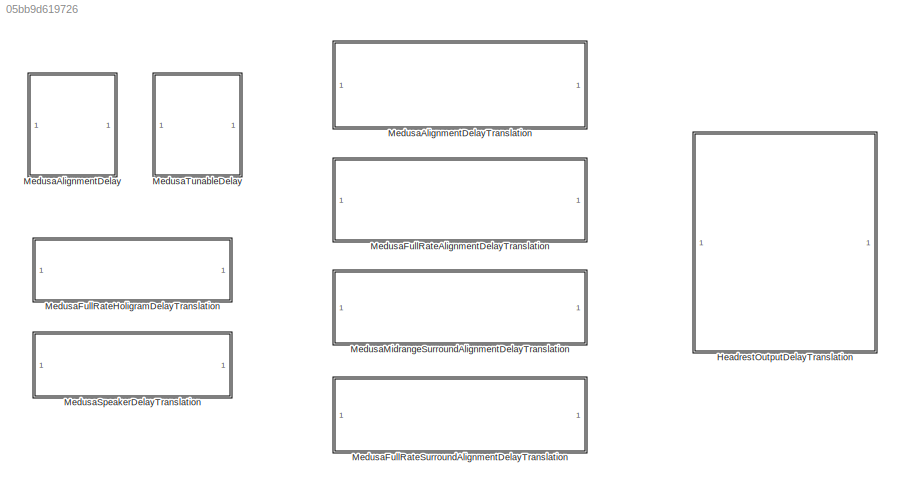
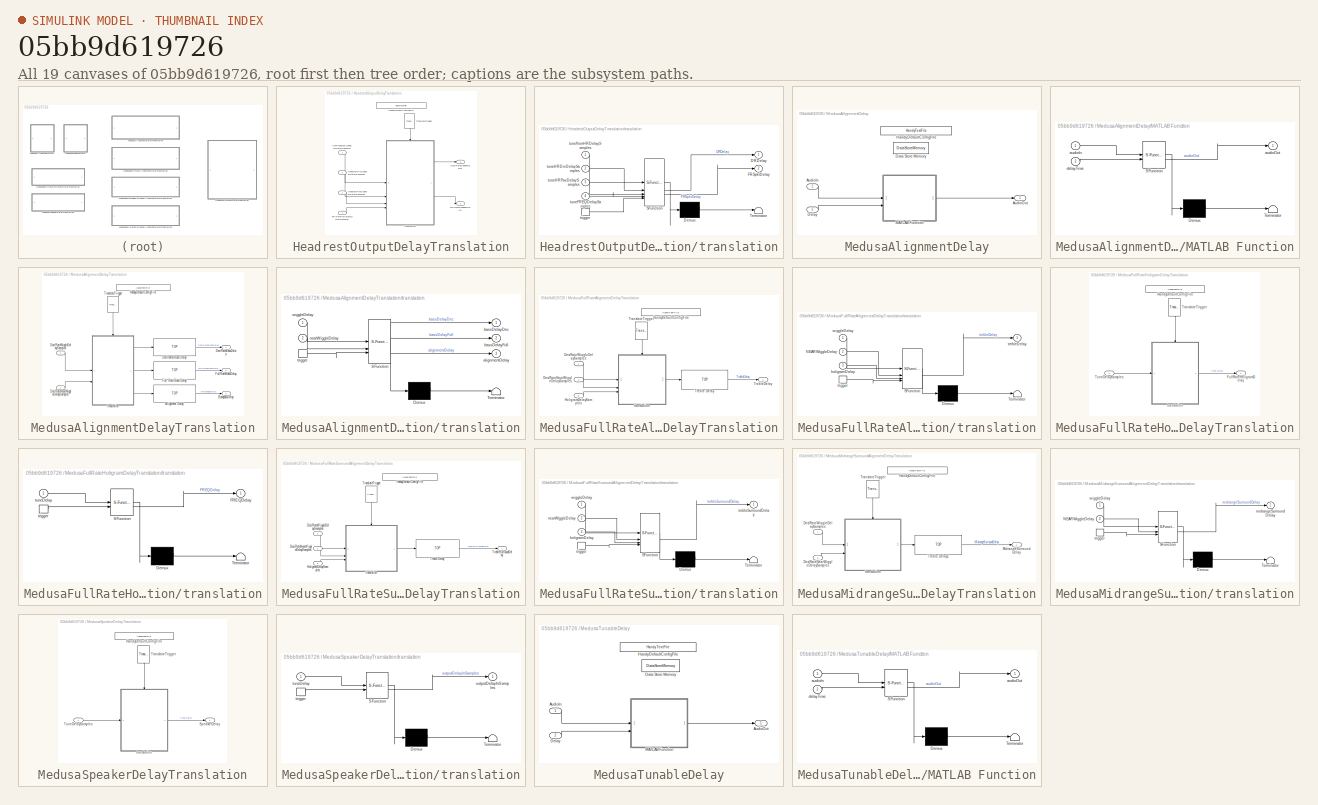
[diagram: thumbnail index - all 19 canvases of the model, root first then tree order]
MODEL slx_05bb9d619726
KIND library
CONFIG AbsTol = auto
CONFIG EnableMultiTasking = off
CONFIG FixedStep = auto
CONFIG MaxStep = auto
CONFIG MinStep = auto
CONFIG RelTol = 1e-3
CONFIG SampleTimeConstraint = Unconstrained
CONFIG SolverName = VariableStepAuto
CONFIG StartTime = 0.0
CONFIG StopTime = 10.0
BLOCK [SubSystem] HeadrestOutputDelayTranslation
BLOCK [Outport] HeadrestOutputDelayTranslation/DeciRateSpeakerDelay
BLOCK [Inport] HeadrestOutputDelayTranslation/FullRateHoligramDelaySamples
  Port = 4
BLOCK [Outport] HeadrestOutputDelayTranslation/FullRateSpeakerDelay
  Port = 2
BLOCK [Reference] HeadrestOutputDelayTranslation/HandyDefaultConfigFile  REF=HandyTextFile/HandyTextFile
  SourceBlock = HandyTextFile/HandyTextFile
  SourceProductName = Bose Talaria
  SourceType = Talaria Handy Text File
BLOCK [Inport] HeadrestOutputDelayTranslation/HeadrestDrvSpeakerDelaySamples
  Port = 2
BLOCK [Inport] HeadrestOutputDelayTranslation/HeadrestPaxSpeakerDelaySamples
  Port = 3
BLOCK [Inport] HeadrestOutputDelayTranslation/NonHeadrestSpeakerDelaySamples
BLOCK [Reference] HeadrestOutputDelayTranslation/TranslateTrigger  REF=TuneVar/TranslateTrigger
  NameLocation = left
  SourceBlock = TuneVar/TranslateTrigger
  SourceProductName = Bose Talaria
  SourceType = Talaria Translate Trigger
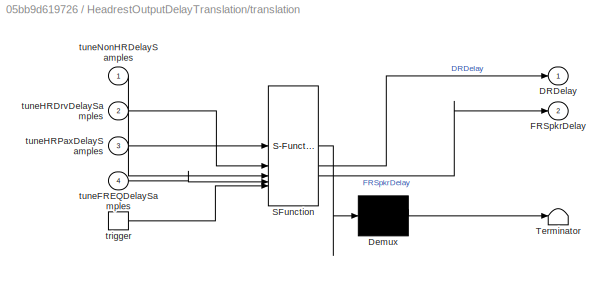
BLOCK [SubSystem] HeadrestOutputDelayTranslation/translation
  ErrorFcn = Stateflow.Translate.translate
  PermitHierarchicalResolution = ExplicitOnly
  SFBlockType = MATLAB Function
  TreatAsAtomicUnit = on
BLOCK [Demux] HeadrestOutputDelayTranslation/translation/ Demux 
  Outputs = 1
BLOCK [S-Function] HeadrestOutputDelayTranslation/translation/ SFunction 
  EnableBusSupport = off
  FunctionName = sf_sfun
  Parameters = DecimationFactor,maxFullRateHoligramDelay,maxFullRateSpeakerDelay,numHeadrestComps
  PortCounts = [5 3]
  SFcnIsStateOwnerBlock = off
  SFunctionDeploymentMode = off
  Tag = Stateflow S-Function 42
BLOCK [Terminator] HeadrestOutputDelayTranslation/translation/ Terminator 
BLOCK [Outport] HeadrestOutputDelayTranslation/translation/DRDelay
BLOCK [Outport] HeadrestOutputDelayTranslation/translation/FRSpkrDelay
  Port = 2
BLOCK [TriggerPort] HeadrestOutputDelayTranslation/translation/trigger
  ShowOutputPort = on
  StatesWhenEnabling = held
  TriggerType = function-call
  VariantControl = Variant
BLOCK [Inport] HeadrestOutputDelayTranslation/translation/tuneFREQDelaySamples
  Port = 4
BLOCK [Inport] HeadrestOutputDelayTranslation/translation/tuneHRDrvDelaySamples
  Port = 2
BLOCK [Inport] HeadrestOutputDelayTranslation/translation/tuneHRPaxDelaySamples
  Port = 3
BLOCK [Inport] HeadrestOutputDelayTranslation/translation/tuneNonHRDelaySamples
BLOCK [SubSystem] MedusaAlignmentDelay
BLOCK [Inport] MedusaAlignmentDelay/AudioIn
BLOCK [Outport] MedusaAlignmentDelay/AudioOut
  VectorParamsAs1DForOutWhenUnconnected = off
BLOCK [DataStoreMemory] MedusaAlignmentDelay/Data Store Memory
  DataStoreName = delayBuffer
  EmbeddedSignalClassName = Bose.Signal
  InitialValue = Config.DelayBufferInitValue
  OutDataTypeStr = single
  ReadBeforeWriteMsg = warning
  ShowAdditionalParam = off
  SignalType = real
  WriteAfterReadMsg = warning
  WriteAfterWriteMsg = warning
BLOCK [Inport] MedusaAlignmentDelay/Delay
  Port = 2
BLOCK [Reference] MedusaAlignmentDelay/HandyDefaultConfigFile  REF=HandyTextFile/HandyTextFile
  SourceBlock = HandyTextFile/HandyTextFile
  SourceProductName = Bose Talaria
  SourceType = Talaria Handy Text File
BLOCK [SubSystem] MedusaAlignmentDelay/MATLAB Function
  ErrorFcn = Stateflow.Translate.translate
  PermitHierarchicalResolution = ExplicitOnly
  SFBlockType = MATLAB Function
  TreatAsAtomicUnit = on
BLOCK [Demux] MedusaAlignmentDelay/MATLAB Function/ Demux 
  Outputs = 1
BLOCK [S-Function] MedusaAlignmentDelay/MATLAB Function/ SFunction 
  EnableBusSupport = off
  FunctionName = sf_sfun
  Parameters = maxDelay
  PortCounts = [2 2]
  SFcnIsStateOwnerBlock = off
  SFunctionDeploymentMode = off
  Tag = Stateflow S-Function 3
BLOCK [Terminator] MedusaAlignmentDelay/MATLAB Function/ Terminator 
BLOCK [Inport] MedusaAlignmentDelay/MATLAB Function/audioIn
BLOCK [Outport] MedusaAlignmentDelay/MATLAB Function/audioOut
  VectorParamsAs1DForOutWhenUnconnected = off
BLOCK [Inport] MedusaAlignmentDelay/MATLAB Function/delayTime
  Port = 2
BLOCK [SubSystem] MedusaAlignmentDelayTranslation
BLOCK [Reference] MedusaAlignmentDelayTranslation/Alignment Delay  REF=TOP/TOP
  SourceBlock = TOP/TOP
  SourceProductName = Bose Talaria
  SourceType = Talaria Target Overlay Parameter
BLOCK [Outport] MedusaAlignmentDelayTranslation/BandpassDelay
  Port = 3
  VectorParamsAs1DForOutWhenUnconnected = off
BLOCK [Outport] MedusaAlignmentDelayTranslation/DeciRateBassDelay
  VectorParamsAs1DForOutWhenUnconnected = off
BLOCK [Inport] MedusaAlignmentDelayTranslation/DeciRateNearWiggleDelaySamples
  Port = 2
BLOCK [Inport] MedusaAlignmentDelayTranslation/DeciRateWiggleDelaySamples
BLOCK [Reference] MedusaAlignmentDelayTranslation/Decimated Bass Delay  REF=TOP/TOP
  SourceBlock = TOP/TOP
  SourceProductName = Bose Talaria
  SourceType = Talaria Target Overlay Parameter
BLOCK [Reference] MedusaAlignmentDelayTranslation/Full Rate Bass Delay  REF=TOP/TOP
  SourceBlock = TOP/TOP
  SourceProductName = Bose Talaria
  SourceType = Talaria Target Overlay Parameter
BLOCK [Outport] MedusaAlignmentDelayTranslation/FullRateBassDelay
  Port = 2
  VectorParamsAs1DForOutWhenUnconnected = off
BLOCK [Reference] MedusaAlignmentDelayTranslation/HandyDefaultConfigFile  REF=HandyTextFile/HandyTextFile
  SourceBlock = HandyTextFile/HandyTextFile
  SourceProductName = Bose Talaria
  SourceType = Talaria Handy Text File
BLOCK [Reference] MedusaAlignmentDelayTranslation/TranslateTrigger  REF=TuneVar/TranslateTrigger
  NameLocation = left
  SourceBlock = TuneVar/TranslateTrigger
  SourceProductName = Bose Talaria
  SourceType = Talaria Translate Trigger
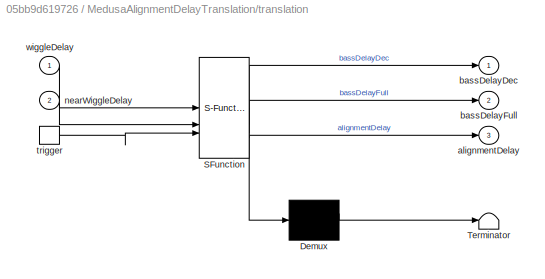
BLOCK [SubSystem] MedusaAlignmentDelayTranslation/translation
  ErrorFcn = Stateflow.Translate.translate
  PermitHierarchicalResolution = ExplicitOnly
  SFBlockType = MATLAB Function
  TreatAsAtomicUnit = on
BLOCK [Demux] MedusaAlignmentDelayTranslation/translation/ Demux 
  Outputs = 1
BLOCK [S-Function] MedusaAlignmentDelayTranslation/translation/ SFunction 
  EnableBusSupport = off
  FunctionName = sf_sfun
  Parameters = DEC,FDPDelay,bandSplitDelay,maxAlignmentDelay,maxBassDelayDec,maxBassDelayFull,maxNearWiggleDelayDec,maxWiggleDelayDec
  PortCounts = [3 4]
  SFcnIsStateOwnerBlock = off
  SFunctionDeploymentMode = off
  Tag = Stateflow S-Function 8
BLOCK [Terminator] MedusaAlignmentDelayTranslation/translation/ Terminator 
BLOCK [Outport] MedusaAlignmentDelayTranslation/translation/alignmentDelay
  Port = 3
  VectorParamsAs1DForOutWhenUnconnected = off
BLOCK [Outport] MedusaAlignmentDelayTranslation/translation/bassDelayDec
  VectorParamsAs1DForOutWhenUnconnected = off
BLOCK [Outport] MedusaAlignmentDelayTranslation/translation/bassDelayFull
  Port = 2
  VectorParamsAs1DForOutWhenUnconnected = off
BLOCK [Inport] MedusaAlignmentDelayTranslation/translation/nearWiggleDelay
  Port = 2
BLOCK [TriggerPort] MedusaAlignmentDelayTranslation/translation/trigger
  ShowOutputPort = on
  StatesWhenEnabling = held
  TriggerType = function-call
  VariantControl = Variant
BLOCK [Inport] MedusaAlignmentDelayTranslation/translation/wiggleDelay
BLOCK [SubSystem] MedusaFullRateAlignmentDelayTranslation
BLOCK [Inport] MedusaFullRateAlignmentDelayTranslation/DeciRateNearWiggleDelaySamples
  Port = 2
BLOCK [Inport] MedusaFullRateAlignmentDelayTranslation/DeciRateWiggleDelaySamples
BLOCK [Reference] MedusaFullRateAlignmentDelayTranslation/HandyDefaultConfigFile  REF=HandyTextFile/HandyTextFile
  SourceBlock = HandyTextFile/HandyTextFile
  SourceProductName = Bose Talaria
  SourceType = Talaria Handy Text File
BLOCK [Inport] MedusaFullRateAlignmentDelayTranslation/HoligramDelaySamples
  Port = 3
BLOCK [Reference] MedusaFullRateAlignmentDelayTranslation/TranslateTrigger  REF=TuneVar/TranslateTrigger
  NameLocation = left
  SourceBlock = TuneVar/TranslateTrigger
  SourceProductName = Bose Talaria
  SourceType = Talaria Translate Trigger
BLOCK [Reference] MedusaFullRateAlignmentDelayTranslation/Treble Delay  REF=TOP/TOP
  SourceBlock = TOP/TOP
  SourceProductName = Bose Talaria
  SourceType = Talaria Target Overlay Parameter
BLOCK [Outport] MedusaFullRateAlignmentDelayTranslation/TrebleDelay
  VectorParamsAs1DForOutWhenUnconnected = off
BLOCK [SubSystem] MedusaFullRateAlignmentDelayTranslation/translation
  ErrorFcn = Stateflow.Translate.translate
  PermitHierarchicalResolution = ExplicitOnly
  SFBlockType = MATLAB Function
  TreatAsAtomicUnit = on
BLOCK [Demux] MedusaFullRateAlignmentDelayTranslation/translation/ Demux 
  Outputs = 1
BLOCK [S-Function] MedusaFullRateAlignmentDelayTranslation/translation/ SFunction 
  EnableBusSupport = off
  FunctionName = sf_sfun
  Parameters = DeciRateFdpDelay,DeciRateMaxNearWiggleDelay,DeciRateMaxWiggleDelay,DecimationFactor,FullRateFdpDelay,MaxHoligramDelay,MaxTrebleDelay
  PortCounts = [4 2]
  SFcnIsStateOwnerBlock = off
  SFunctionDeploymentMode = off
  Tag = Stateflow S-Function 2
BLOCK [Terminator] MedusaFullRateAlignmentDelayTranslation/translation/ Terminator 
BLOCK [Inport] MedusaFullRateAlignmentDelayTranslation/translation/NEARWiggleDelay
  Port = 2
BLOCK [Inport] MedusaFullRateAlignmentDelayTranslation/translation/holigramDelay
  Port = 3
BLOCK [Outport] MedusaFullRateAlignmentDelayTranslation/translation/trebleDelay
  VectorParamsAs1DForOutWhenUnconnected = off
BLOCK [TriggerPort] MedusaFullRateAlignmentDelayTranslation/translation/trigger
  ShowOutputPort = on
  StatesWhenEnabling = held
  TriggerType = function-call
  VariantControl = Variant
BLOCK [Inport] MedusaFullRateAlignmentDelayTranslation/translation/wiggleDelay
BLOCK [SubSystem] MedusaFullRateHoligramDelayTranslation
BLOCK [Outport] MedusaFullRateHoligramDelayTranslation/FullRateHoligramDelay
  VectorParamsAs1DForOutWhenUnconnected = off
BLOCK [Reference] MedusaFullRateHoligramDelayTranslation/HandyDefaultConfigFile  REF=HandyTextFile/HandyTextFile
  SourceBlock = HandyTextFile/HandyTextFile
  SourceProductName = Bose Talaria
  SourceType = Talaria Handy Text File
BLOCK [Reference] MedusaFullRateHoligramDelayTranslation/TranslateTrigger  REF=TuneVar/TranslateTrigger
  NameLocation = left
  SourceBlock = TuneVar/TranslateTrigger
  SourceProductName = Bose Talaria
  SourceType = Talaria Translate Trigger
BLOCK [Inport] MedusaFullRateHoligramDelayTranslation/TuneDelaySamples
BLOCK [SubSystem] MedusaFullRateHoligramDelayTranslation/translation
  ErrorFcn = Stateflow.Translate.translate
  PermitHierarchicalResolution = ExplicitOnly
  SFBlockType = MATLAB Function
  TreatAsAtomicUnit = on
BLOCK [Demux] MedusaFullRateHoligramDelayTranslation/translation/ Demux 
  Outputs = 1
BLOCK [S-Function] MedusaFullRateHoligramDelayTranslation/translation/ SFunction 
  EnableBusSupport = off
  FunctionName = sf_sfun
  Parameters = maxDelay
  PortCounts = [2 2]
  SFcnIsStateOwnerBlock = off
  SFunctionDeploymentMode = off
  Tag = Stateflow S-Function 1
BLOCK [Terminator] MedusaFullRateHoligramDelayTranslation/translation/ Terminator 
BLOCK [Outport] MedusaFullRateHoligramDelayTranslation/translation/FREQDelay
  VectorParamsAs1DForOutWhenUnconnected = off
BLOCK [TriggerPort] MedusaFullRateHoligramDelayTranslation/translation/trigger
  ShowOutputPort = on
  StatesWhenEnabling = held
  TriggerType = function-call
  VariantControl = Variant
BLOCK [Inport] MedusaFullRateHoligramDelayTranslation/translation/tuneDelay
BLOCK [SubSystem] MedusaFullRateSurroundAlignmentDelayTranslation
BLOCK [Inport] MedusaFullRateSurroundAlignmentDelayTranslation/DeciRateNearWiggleDelaySamples
  Port = 2
BLOCK [Inport] MedusaFullRateSurroundAlignmentDelayTranslation/DeciRateWiggleDelaySamples
BLOCK [Reference] MedusaFullRateSurroundAlignmentDelayTranslation/HandyDefaultConfigFile  REF=HandyTextFile/HandyTextFile
  SourceBlock = HandyTextFile/HandyTextFile
  SourceProductName = Bose Talaria
  SourceType = Talaria Handy Text File
BLOCK [Inport] MedusaFullRateSurroundAlignmentDelayTranslation/HoligramDelaySamples
  Port = 3
BLOCK [Reference] MedusaFullRateSurroundAlignmentDelayTranslation/TranslateTrigger  REF=TuneVar/TranslateTrigger
  NameLocation = left
  SourceBlock = TuneVar/TranslateTrigger
  SourceProductName = Bose Talaria
  SourceType = Talaria Translate Trigger
BLOCK [Reference] MedusaFullRateSurroundAlignmentDelayTranslation/Treble Delay  REF=TOP/TOP
  SourceBlock = TOP/TOP
  SourceProductName = Bose Talaria
  SourceType = Talaria Target Overlay Parameter
BLOCK [Outport] MedusaFullRateSurroundAlignmentDelayTranslation/TrebleSurroundDelay
  VectorParamsAs1DForOutWhenUnconnected = off
BLOCK [SubSystem] MedusaFullRateSurroundAlignmentDelayTranslation/translation
  ErrorFcn = Stateflow.Translate.translate
  PermitHierarchicalResolution = ExplicitOnly
  SFBlockType = MATLAB Function
  TreatAsAtomicUnit = on
BLOCK [Demux] MedusaFullRateSurroundAlignmentDelayTranslation/translation/ Demux 
  Outputs = 1
BLOCK [S-Function] MedusaFullRateSurroundAlignmentDelayTranslation/translation/ SFunction 
  EnableBusSupport = off
  FunctionName = sf_sfun
  Parameters = deciRateFdpDelay,deciRateMaxNEARWiggleDelay,deciRateMaxWiggleDelay,decimationFactor,maxHoligramDelay,maxSurroundTrebleDelay
  PortCounts = [4 2]
  SFcnIsStateOwnerBlock = off
  SFunctionDeploymentMode = off
  Tag = Stateflow S-Function 6
BLOCK [Terminator] MedusaFullRateSurroundAlignmentDelayTranslation/translation/ Terminator 
BLOCK [Inport] MedusaFullRateSurroundAlignmentDelayTranslation/translation/holigramDelay
  Port = 3
BLOCK [Inport] MedusaFullRateSurroundAlignmentDelayTranslation/translation/nearWiggleDelay
  Port = 2
BLOCK [Outport] MedusaFullRateSurroundAlignmentDelayTranslation/translation/trebleSurroundDelay
  VectorParamsAs1DForOutWhenUnconnected = off
BLOCK [TriggerPort] MedusaFullRateSurroundAlignmentDelayTranslation/translation/trigger
  ShowOutputPort = on
  StatesWhenEnabling = held
  TriggerType = function-call
  VariantControl = Variant
BLOCK [Inport] MedusaFullRateSurroundAlignmentDelayTranslation/translation/wiggleDelay
BLOCK [SubSystem] MedusaMidrangeSurroundAlignmentDelayTranslation
BLOCK [Inport] MedusaMidrangeSurroundAlignmentDelayTranslation/DeciRateNearWiggleDelaySamples
  Port = 2
BLOCK [Inport] MedusaMidrangeSurroundAlignmentDelayTranslation/DeciRateWiggleDelaySamples
BLOCK [Reference] MedusaMidrangeSurroundAlignmentDelayTranslation/HandyDefaultConfigFile  REF=HandyTextFile/HandyTextFile
  SourceBlock = HandyTextFile/HandyTextFile
  SourceProductName = Bose Talaria
  SourceType = Talaria Handy Text File
BLOCK [Outport] MedusaMidrangeSurroundAlignmentDelayTranslation/MidrangeSurroundDelay
  VectorParamsAs1DForOutWhenUnconnected = off
BLOCK [Reference] MedusaMidrangeSurroundAlignmentDelayTranslation/TranslateTrigger  REF=TuneVar/TranslateTrigger
  NameLocation = left
  SourceBlock = TuneVar/TranslateTrigger
  SourceProductName = Bose Talaria
  SourceType = Talaria Translate Trigger
BLOCK [Reference] MedusaMidrangeSurroundAlignmentDelayTranslation/Treble Delay1  REF=TOP/TOP
  SourceBlock = TOP/TOP
  SourceProductName = Bose Talaria
  SourceType = Talaria Target Overlay Parameter
BLOCK [SubSystem] MedusaMidrangeSurroundAlignmentDelayTranslation/translation
  ErrorFcn = Stateflow.Translate.translate
  PermitHierarchicalResolution = ExplicitOnly
  SFBlockType = MATLAB Function
  TreatAsAtomicUnit = on
BLOCK [Demux] MedusaMidrangeSurroundAlignmentDelayTranslation/translation/ Demux 
  Outputs = 1
BLOCK [S-Function] MedusaMidrangeSurroundAlignmentDelayTranslation/translation/ SFunction 
  EnableBusSupport = off
  FunctionName = sf_sfun
  Parameters = DeciRateFdpDelay,DeciRateMaxNearWiggleDelay,DeciRateMaxWiggleDelay,DecimationFactor,MaxMidrangeSurroundDelay
  PortCounts = [3 2]
  SFcnIsStateOwnerBlock = off
  SFunctionDeploymentMode = off
  Tag = Stateflow S-Function 4
BLOCK [Terminator] MedusaMidrangeSurroundAlignmentDelayTranslation/translation/ Terminator 
BLOCK [Inport] MedusaMidrangeSurroundAlignmentDelayTranslation/translation/NEARWiggleDelay
  Port = 2
BLOCK [Outport] MedusaMidrangeSurroundAlignmentDelayTranslation/translation/midrangeSurroundDelay
  VectorParamsAs1DForOutWhenUnconnected = off
BLOCK [TriggerPort] MedusaMidrangeSurroundAlignmentDelayTranslation/translation/trigger
  ShowOutputPort = on
  StatesWhenEnabling = held
  TriggerType = function-call
  VariantControl = Variant
BLOCK [Inport] MedusaMidrangeSurroundAlignmentDelayTranslation/translation/wiggleDelay
BLOCK [SubSystem] MedusaSpeakerDelayTranslation
BLOCK [Reference] MedusaSpeakerDelayTranslation/HandyDefaultConfigFile  REF=HandyTextFile/HandyTextFile
  SourceBlock = HandyTextFile/HandyTextFile
  SourceProductName = Bose Talaria
  SourceType = Talaria Handy Text File
BLOCK [Outport] MedusaSpeakerDelayTranslation/SpeakerDelay
  VectorParamsAs1DForOutWhenUnconnected = off
BLOCK [Reference] MedusaSpeakerDelayTranslation/TranslateTrigger  REF=TuneVar/TranslateTrigger
  NameLocation = left
  SourceBlock = TuneVar/TranslateTrigger
  SourceProductName = Bose Talaria
  SourceType = Talaria Translate Trigger
BLOCK [Inport] MedusaSpeakerDelayTranslation/TuneDelaySamples
BLOCK [SubSystem] MedusaSpeakerDelayTranslation/translation
  ErrorFcn = Stateflow.Translate.translate
  PermitHierarchicalResolution = ExplicitOnly
  SFBlockType = MATLAB Function
  TreatAsAtomicUnit = on
BLOCK [Demux] MedusaSpeakerDelayTranslation/translation/ Demux 
  Outputs = 1
BLOCK [S-Function] MedusaSpeakerDelayTranslation/translation/ SFunction 
  EnableBusSupport = off
  FunctionName = sf_sfun
  Parameters = maxDelay
  PortCounts = [2 2]
  SFcnIsStateOwnerBlock = off
  SFunctionDeploymentMode = off
  Tag = Stateflow S-Function 10
BLOCK [Terminator] MedusaSpeakerDelayTranslation/translation/ Terminator 
BLOCK [Outport] MedusaSpeakerDelayTranslation/translation/outputDelayInSamples
  VectorParamsAs1DForOutWhenUnconnected = off
BLOCK [TriggerPort] MedusaSpeakerDelayTranslation/translation/trigger
  ShowOutputPort = on
  StatesWhenEnabling = held
  TriggerType = function-call
  VariantControl = Variant
BLOCK [Inport] MedusaSpeakerDelayTranslation/translation/tuneDelay
BLOCK [SubSystem] MedusaTunableDelay
BLOCK [Inport] MedusaTunableDelay/AudioIn
BLOCK [Outport] MedusaTunableDelay/AudioOut
  VectorParamsAs1DForOutWhenUnconnected = off
BLOCK [DataStoreMemory] MedusaTunableDelay/Data Store Memory
  DataStoreName = delayBuffer
  EmbeddedSignalClassName = Bose.Signal
  InitialValue = Config.DelayBufferInitValue
  OutDataTypeStr = single
  ReadBeforeWriteMsg = warning
  ShowAdditionalParam = off
  SignalType = real
  WriteAfterReadMsg = warning
  WriteAfterWriteMsg = warning
BLOCK [Inport] MedusaTunableDelay/Delay
  Port = 2
BLOCK [Reference] MedusaTunableDelay/HandyDefaultConfigFile  REF=HandyTextFile/HandyTextFile
  SourceBlock = HandyTextFile/HandyTextFile
  SourceProductName = Bose Talaria
  SourceType = Talaria Handy Text File
BLOCK [SubSystem] MedusaTunableDelay/MATLAB Function
  ErrorFcn = Stateflow.Translate.translate
  PermitHierarchicalResolution = ExplicitOnly
  SFBlockType = MATLAB Function
  TreatAsAtomicUnit = on
BLOCK [Demux] MedusaTunableDelay/MATLAB Function/ Demux 
  Outputs = 1
BLOCK [S-Function] MedusaTunableDelay/MATLAB Function/ SFunction 
  EnableBusSupport = off
  FunctionName = sf_sfun
  Parameters = maxDelay
  PortCounts = [2 2]
  SFcnIsStateOwnerBlock = off
  SFunctionDeploymentMode = off
  Tag = Stateflow S-Function 5
BLOCK [Terminator] MedusaTunableDelay/MATLAB Function/ Terminator 
BLOCK [Inport] MedusaTunableDelay/MATLAB Function/audioIn
BLOCK [Outport] MedusaTunableDelay/MATLAB Function/audioOut
  VectorParamsAs1DForOutWhenUnconnected = off
BLOCK [Inport] MedusaTunableDelay/MATLAB Function/delayTime
  Port = 2
LINE HeadrestOutputDelayTranslation/FullRateHoligramDelaySamples:1 -> HeadrestOutputDelayTranslation/translation:4
LINE HeadrestOutputDelayTranslation/HeadrestDrvSpeakerDelaySamples:1 -> HeadrestOutputDelayTranslation/translation:2
LINE HeadrestOutputDelayTranslation/HeadrestPaxSpeakerDelaySamples:1 -> HeadrestOutputDelayTranslation/translation:3
LINE HeadrestOutputDelayTranslation/NonHeadrestSpeakerDelaySamples:1 -> HeadrestOutputDelayTranslation/translation:1
LINE HeadrestOutputDelayTranslation/TranslateTrigger:1 -> HeadrestOutputDelayTranslation/translation:trigger
LINE HeadrestOutputDelayTranslation/translation:1 -> HeadrestOutputDelayTranslation/DeciRateSpeakerDelay:1
LINE HeadrestOutputDelayTranslation/translation:2 -> HeadrestOutputDelayTranslation/FullRateSpeakerDelay:1
LINE MedusaAlignmentDelayTranslation/Alignment Delay:1 -> MedusaAlignmentDelayTranslation/BandpassDelay:1
LINE MedusaAlignmentDelayTranslation/DeciRateNearWiggleDelaySamples:1 -> MedusaAlignmentDelayTranslation/translation:2
LINE MedusaAlignmentDelayTranslation/DeciRateWiggleDelaySamples:1 -> MedusaAlignmentDelayTranslation/translation:1
LINE MedusaAlignmentDelayTranslation/Decimated Bass Delay:1 -> MedusaAlignmentDelayTranslation/DeciRateBassDelay:1
LINE MedusaAlignmentDelayTranslation/Full Rate Bass Delay:1 -> MedusaAlignmentDelayTranslation/FullRateBassDelay:1
LINE MedusaAlignmentDelayTranslation/TranslateTrigger:1 -> MedusaAlignmentDelayTranslation/translation:trigger
LINE MedusaAlignmentDelayTranslation/translation:1 -> MedusaAlignmentDelayTranslation/Decimated Bass Delay:1
LINE MedusaAlignmentDelayTranslation/translation:2 -> MedusaAlignmentDelayTranslation/Full Rate Bass Delay:1
LINE MedusaAlignmentDelayTranslation/translation:3 -> MedusaAlignmentDelayTranslation/Alignment Delay:1
LINE MedusaFullRateAlignmentDelayTranslation/DeciRateNearWiggleDelaySamples:1 -> MedusaFullRateAlignmentDelayTranslation/translation:2
LINE MedusaFullRateAlignmentDelayTranslation/DeciRateWiggleDelaySamples:1 -> MedusaFullRateAlignmentDelayTranslation/translation:1
LINE MedusaFullRateAlignmentDelayTranslation/HoligramDelaySamples:1 -> MedusaFullRateAlignmentDelayTranslation/translation:3
LINE MedusaFullRateAlignmentDelayTranslation/TranslateTrigger:1 -> MedusaFullRateAlignmentDelayTranslation/translation:trigger
LINE MedusaFullRateAlignmentDelayTranslation/Treble Delay:1 -> MedusaFullRateAlignmentDelayTranslation/TrebleDelay:1
LINE MedusaFullRateAlignmentDelayTranslation/translation:1 -> MedusaFullRateAlignmentDelayTranslation/Treble Delay:1
LINE MedusaFullRateHoligramDelayTranslation/TranslateTrigger:1 -> MedusaFullRateHoligramDelayTranslation/translation:trigger
LINE MedusaFullRateHoligramDelayTranslation/TuneDelaySamples:1 -> MedusaFullRateHoligramDelayTranslation/translation:1
LINE MedusaFullRateHoligramDelayTranslation/translation:1 -> MedusaFullRateHoligramDelayTranslation/FullRateHoligramDelay:1
LINE MedusaFullRateSurroundAlignmentDelayTranslation/DeciRateNearWiggleDelaySamples:1 -> MedusaFullRateSurroundAlignmentDelayTranslation/translation:2
LINE MedusaFullRateSurroundAlignmentDelayTranslation/DeciRateWiggleDelaySamples:1 -> MedusaFullRateSurroundAlignmentDelayTranslation/translation:1
LINE MedusaFullRateSurroundAlignmentDelayTranslation/HoligramDelaySamples:1 -> MedusaFullRateSurroundAlignmentDelayTranslation/translation:3
LINE MedusaFullRateSurroundAlignmentDelayTranslation/TranslateTrigger:1 -> MedusaFullRateSurroundAlignmentDelayTranslation/translation:trigger
LINE MedusaFullRateSurroundAlignmentDelayTranslation/Treble Delay:1 -> MedusaFullRateSurroundAlignmentDelayTranslation/TrebleSurroundDelay:1
LINE MedusaFullRateSurroundAlignmentDelayTranslation/translation:1 -> MedusaFullRateSurroundAlignmentDelayTranslation/Treble Delay:1
LINE MedusaMidrangeSurroundAlignmentDelayTranslation/DeciRateNearWiggleDelaySamples:1 -> MedusaMidrangeSurroundAlignmentDelayTranslation/translation:2
LINE MedusaMidrangeSurroundAlignmentDelayTranslation/DeciRateWiggleDelaySamples:1 -> MedusaMidrangeSurroundAlignmentDelayTranslation/translation:1
LINE MedusaMidrangeSurroundAlignmentDelayTranslation/TranslateTrigger:1 -> MedusaMidrangeSurroundAlignmentDelayTranslation/translation:trigger
LINE MedusaMidrangeSurroundAlignmentDelayTranslation/Treble Delay1:1 -> MedusaMidrangeSurroundAlignmentDelayTranslation/MidrangeSurroundDelay:1
LINE MedusaMidrangeSurroundAlignmentDelayTranslation/translation:1 -> MedusaMidrangeSurroundAlignmentDelayTranslation/Treble Delay1:1
LINE MedusaSpeakerDelayTranslation/TranslateTrigger:1 -> MedusaSpeakerDelayTranslation/translation:trigger
LINE MedusaSpeakerDelayTranslation/TuneDelaySamples:1 -> MedusaSpeakerDelayTranslation/translation:1
LINE MedusaSpeakerDelayTranslation/translation:1 -> MedusaSpeakerDelayTranslation/SpeakerDelay:1
CHART MedusaAlignmentDelayTranslation/translation states=1 transitions=1
  STATE_LABEL 'eML_blk_kernel()'
  STATE_LABEL 'SCRIPT:\nfunction [bassDelayDec, bassDelayFull, alignmentDelay]  = fcn(wiggleDelay, nearWiggleDelay, DEC,...\n                                                                maxWiggleDelayDec, maxNearWiggleDelayDec,...\n                                                                FDPDelay, bandSplitDelay,...\n                                                                maxBassDelayFull, maxBassD...<+2511ch>'
CHART MedusaSpeakerDelayTranslation/translation states=1 transitions=1
  STATE_LABEL 'eML_blk_kernel()'
  STATE_LABEL "SCRIPT:\nfunction outputDelayInSamples = fcn(tuneDelay, maxDelay)\n%[Param: maxDelay]\n\nif(sum(tuneDelay.Value < 0))\n    TranslateError('Value of ''Medusa Output Delay'' must be greater than or equal to zero.');\nend\n\n% % Computing the delay in samples \n% TunableDelay = round(tuneDelay.Value* 1e-3 * sampleRate);\n\nif(sum(tuneDelay.Value > maxDelay))\n    TranslateError('Value of ''Medusa Output Delay'' ...<+103ch>"
CHART HeadrestOutputDelayTranslation/translation states=1 transitions=1
  STATE_LABEL 'eML_blk_kernel()'
  STATE_LABEL 'SCRIPT:\nfunction [DRDelay, FRSpkrDelay] = fcn( tuneNonHRDelaySamples, tuneHRDrvDelaySamples, ...\n    tuneHRPaxDelaySamples, tuneFREQDelaySamples, DecimationFactor, maxFullRateHoligramDelay, maxFullRateSpeakerDelay, numHeadrestComps)\n%#codegen\n%[Param:DecimationFactor]\n%[Param:maxFullRateHoligramDelay]\n%[Param:maxFullRateSpeakerDelay]\n%[Param:numHeadrestComps]\n\nnonHRDelaySamples = tuneNonHRDelaySam...<+2396ch>'
CHART MedusaFullRateHoligramDelayTranslation/translation states=1 transitions=1
  STATE_LABEL 'eML_blk_kernel()'
  STATE_LABEL "SCRIPT:\nfunction FREQDelay = fcn(tuneDelay, maxDelay)\n%#codegen\n%[Param: maxDelay]\n\nif(sum(tuneDelay.Value < 0))\n    TranslateError('Value of ''Medusa Full-Rate Equalization Delay'' must be greater than or equal to zero.');\nend\n\nif(sum(tuneDelay.Value > maxDelay))\n    TranslateError('Value of ''Medusa Full-Rate Equalization Delay'' must be less than or equal to %d.', maxDelay);\nend\n\nFREQDelay = tu...<+19ch>"
CHART MedusaFullRateAlignmentDelayTranslation/translation states=1 transitions=1
  STATE_LABEL 'eML_blk_kernel()'
  STATE_LABEL 'SCRIPT:\nfunction trebleDelay   = fcn(wiggleDelay, NEARWiggleDelay, holigramDelay,...\n                                DecimationFactor, DeciRateMaxWiggleDelay,...\n                                DeciRateMaxNearWiggleDelay, MaxHoligramDelay,...\n                                DeciRateFdpDelay, FullRateFdpDelay, MaxTrebleDelay)\n%#codegen\n%[Param:DecimationFactor]\n%[Param:DeciRateMaxWiggleDelay]\n%[Par...<+2136ch>'
CHART MedusaAlignmentDelay/MATLAB Function states=1 transitions=1
  STATE_LABEL 'eML_blk_kernel()'
  STATE_LABEL 'SCRIPT:\nfunction audioOut = delay(audioIn, delayTime, maxDelay)\n%#codegen\n%[Param:maxDelay]\n\n% Our delayline lives in global variable. We treat as a circular buffer. \nglobal delayBuffer\n\n% figure out the frame size and channel count\n[frameSize, numChannels] = size(audioIn);\nframeSize = int32(frameSize);\nstateLen = int32(maxDelay)+frameSize;\ntotalLen = int32(stateLen * numChannels);\naudioOut = code...<+1461ch>'
CHART MedusaMidrangeSurroundAlignmentDelayTranslation/translation states=1 transitions=1
  STATE_LABEL 'eML_blk_kernel()'
  STATE_LABEL 'SCRIPT:\nfunction midrangeSurroundDelay   = fcn(wiggleDelay, NEARWiggleDelay, DecimationFactor,...\n                                        DeciRateMaxWiggleDelay, DeciRateMaxNearWiggleDelay,...\n                                        DeciRateFdpDelay, MaxMidrangeSurroundDelay)\n%#codegen\n%[Param:DecimationFactor]\n%[Param:DeciRateMaxWiggleDelay]\n%[Param:DeciRateMaxNEARWiggleDelay]\n%[Param:DeciRateFdp...<+1727ch>'
CHART MedusaTunableDelay/MATLAB Function states=1 transitions=1
  STATE_LABEL 'eML_blk_kernel()'
  STATE_LABEL 'SCRIPT:\nfunction audioOut = delay(audioIn, delayTime, maxDelay)\n%#codegen\n%[Param: maxDelay]\n\n% Our delayline lives in global variable. We treat as a circular buffer. \nglobal delayBuffer\n\n% figure out the frame size and channel count\n[frameSize, numChannels] = size(audioIn);\nframeSize = int32(frameSize);\nstateLen = int32(maxDelay)+frameSize;\ntotalLen = int32(stateLen * numChannels);\naudioOut = cod...<+1474ch>'
CHART MedusaFullRateSurroundAlignmentDelayTranslation/translation states=1 transitions=1
  STATE_LABEL 'eML_blk_kernel()'
  STATE_LABEL 'SCRIPT:\nfunction trebleSurroundDelay  = fcn(wiggleDelay,...\n                                    nearWiggleDelay,...\n                                    holigramDelay,...\n                                    decimationFactor,...\n                                    deciRateMaxWiggleDelay,...\n                                    deciRateMaxNEARWiggleDelay,...\n                                    maxHoli...<+2366ch>'
CHART  states=0 transitions=0
CHART  states=0 transitions=0
CHART  states=0 transitions=0
CHART  states=0 transitions=0
CHART  states=0 transitions=0
CHART  states=0 transitions=0
CHART  states=0 transitions=0
CHART  states=0 transitions=0
CHART  states=0 transitions=0
